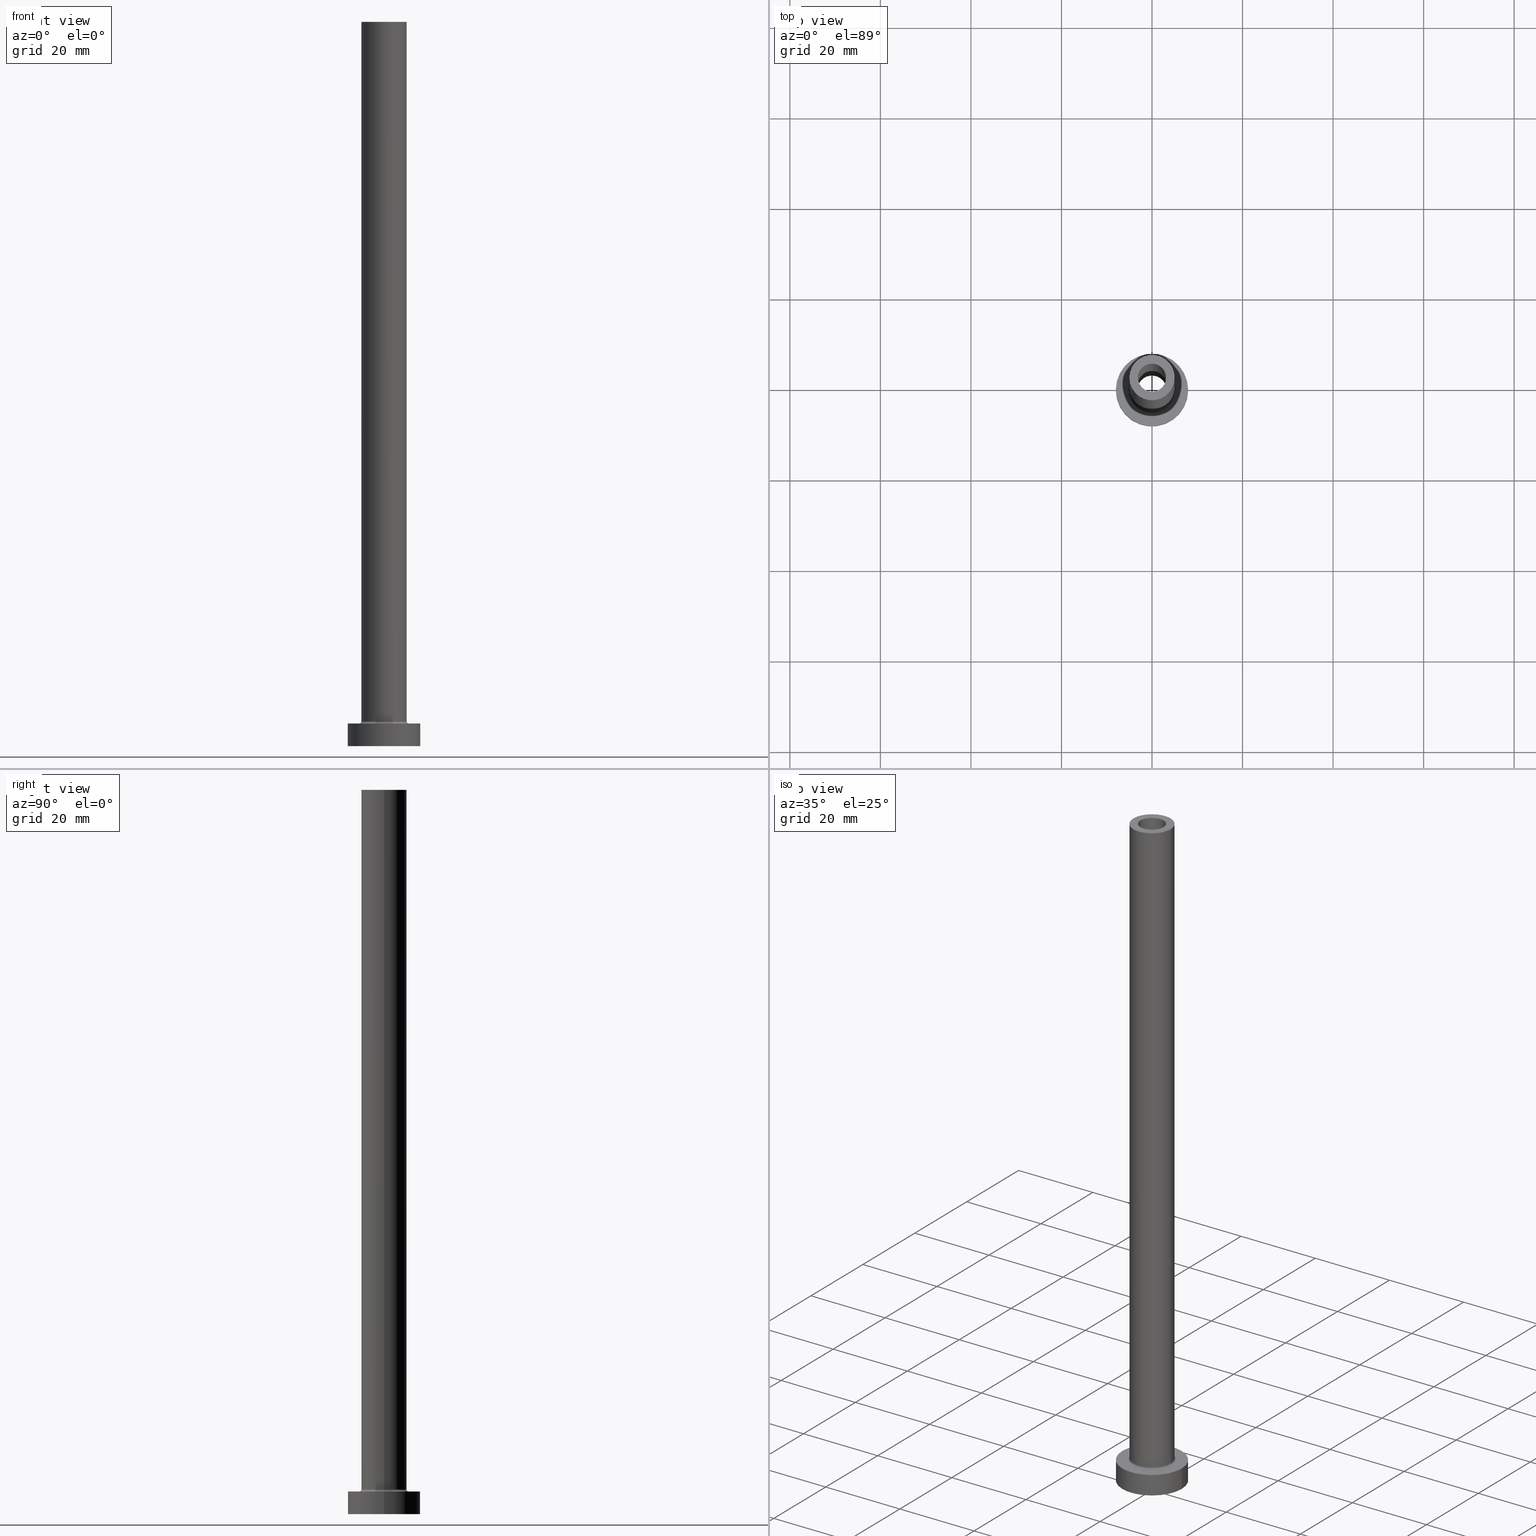
[diagram: canonical four-view strip — front | top / right | iso, engineering-drawing reading convention]
A machine part, canonical four-view strip (front | top / right | iso — engineering-drawing reading convention). The complete STEP part file that produces these views, byte-faithful:
ISO-10303-21;
HEADER;
FILE_DESCRIPTION (( 'STEP AP203' ),
    '1' );
FILE_NAME ('5072.STEP',
    '2023-02-13T09:12:24',
    ( '' ),
    ( '' ),
    'SwSTEP 2.0',
    'SolidWorks 2019',
    '' );
FILE_SCHEMA (( 'CONFIG_CONTROL_DESIGN' ));
ENDSEC;

DATA;
#1 = DIRECTION ( 'NONE',  ( 1.000000000000000000, 0.000000000000000000, 0.000000000000000000 ) ) ;
#2 = ADVANCED_BREP_SHAPE_REPRESENTATION ( '5072', ( #233, #438 ), #177 ) ;
#3 = ORIENTED_EDGE ( 'NONE', *, *, #66, .F. ) ;
#4 = ORIENTED_EDGE ( 'NONE', *, *, #107, .T. ) ;
#5 = ORIENTED_EDGE ( 'NONE', *, *, #46, .T. ) ;
#6 = CIRCLE ( 'NONE', #257, 8.000000000000000000 ) ;
#7 = ORIENTED_EDGE ( 'NONE', *, *, #185, .T. ) ;
#8 = CIRCLE ( 'NONE', #242, 3.250000000000000444 ) ;
#9 = CARTESIAN_POINT ( 'NONE',  ( 0.000000000000000000, 0.000000000000000000, 115.0000000000000000 ) ) ;
#10 = DIRECTION ( 'NONE',  ( 1.000000000000000000, 0.000000000000000000, -0.000000000000000000 ) ) ;
#11 = EDGE_CURVE ( 'NONE', #94, #293, #193, .T. ) ;
#12 = AXIS2_PLACEMENT_3D ( 'NONE', #155, #197, #127 ) ;
#13 = ORIENTED_EDGE ( 'NONE', *, *, #353, .T. ) ;
#14 = FACE_OUTER_BOUND ( 'NONE', #98, .T. ) ;
#15 = VERTEX_POINT ( 'NONE', #380 ) ;
#16 = EDGE_CURVE ( 'NONE', #422, #311, #173, .T. ) ;
#17 = CYLINDRICAL_SURFACE ( 'NONE', #427, 3.250000000000000444 ) ;
#18 = AXIS2_PLACEMENT_3D ( 'NONE', #272, #381, #68 ) ;
#19 = PERSON_AND_ORGANIZATION ( #74, #92 ) ;
#20 = CARTESIAN_POINT ( 'NONE',  ( -8.000000000000000000, 0.000000000000000000, 5.000000000000000000 ) ) ;
#21 = ORIENTED_EDGE ( 'NONE', *, *, #374, .T. ) ;
#22 = DATE_TIME_ROLE ( 'creation_date' ) ;
#23 = DIRECTION ( 'NONE',  ( 1.000000000000000000, 0.000000000000000000, -0.000000000000000000 ) ) ;
#24 = APPROVAL_DATE_TIME ( #159, #437 ) ;
#25 = DIRECTION ( 'NONE',  ( 0.000000000000000000, 0.000000000000000000, -1.000000000000000000 ) ) ;
#26 = AXIS2_PLACEMENT_3D ( 'NONE', #225, #255, #453 ) ;
#27 = APPROVAL_STATUS ( 'not_yet_approved' ) ;
#28 = LOCAL_TIME ( 10, 12, 24.00000000000000000, #58 ) ;
#29 = EDGE_LOOP ( 'NONE', ( #278, #289, #170, #117 ) ) ;
#30 = APPROVAL_STATUS ( 'not_yet_approved' ) ;
#31 = VECTOR ( 'NONE', #241, 1000.000000000000000 ) ;
#32 = DIRECTION ( 'NONE',  ( 1.000000000000000000, 0.000000000000000000, 0.000000000000000000 ) ) ;
#33 = EDGE_CURVE ( 'NONE', #175, #186, #421, .T. ) ;
#34 = CYLINDRICAL_SURFACE ( 'NONE', #41, 5.000000000000000000 ) ;
#35 = DIRECTION ( 'NONE',  ( 0.000000000000000000, 0.000000000000000000, 1.000000000000000000 ) ) ;
#36 = AXIS2_PLACEMENT_3D ( 'NONE', #122, #84, #23 ) ;
#37 = DIRECTION ( 'NONE',  ( 1.000000000000000000, 0.000000000000000000, 0.000000000000000000 ) ) ;
#38 = FACE_OUTER_BOUND ( 'NONE', #308, .T. ) ;
#39 = DIRECTION ( 'NONE',  ( -0.000000000000000000, -0.000000000000000000, -1.000000000000000000 ) ) ;
#40 =( NAMED_UNIT ( * ) SI_UNIT ( $, .STERADIAN. ) SOLID_ANGLE_UNIT ( ) );
#41 = AXIS2_PLACEMENT_3D ( 'NONE', #246, #313, #174 ) ;
#42 = CARTESIAN_POINT ( 'NONE',  ( -5.000000000000000000, 0.000000000000000000, 160.0000000000000000 ) ) ;
#43 = DIRECTION ( 'NONE',  ( 1.000000000000000000, 0.000000000000000000, -0.000000000000000000 ) ) ;
#44 = ORIENTED_EDGE ( 'NONE', *, *, #285, .T. ) ;
#45 = DIRECTION ( 'NONE',  ( 0.000000000000000000, 0.000000000000000000, 1.000000000000000000 ) ) ;
#46 = EDGE_CURVE ( 'NONE', #317, #283, #452, .T. ) ;
#47 = ORIENTED_EDGE ( 'NONE', *, *, #234, .T. ) ;
#48 = CARTESIAN_POINT ( 'NONE',  ( 3.100000000000000089, 3.796405077356793932E-16, 160.0000000000000000 ) ) ;
#49 = AXIS2_PLACEMENT_3D ( 'NONE', #239, #207, #32 ) ;
#50 = FACE_OUTER_BOUND ( 'NONE', #96, .T. ) ;
#51 = ORIENTED_EDGE ( 'NONE', *, *, #324, .F. ) ;
#52 = DIRECTION ( 'NONE',  ( 0.000000000000000000, 0.000000000000000000, -1.000000000000000000 ) ) ;
#53 = CIRCLE ( 'NONE', #434, 5.000000000000000000 ) ;
#54 = PERSON_AND_ORGANIZATION ( #74, #92 ) ;
#55 = CIRCLE ( 'NONE', #298, 3.100000000000000089 ) ;
#56 = DIRECTION ( 'NONE',  ( -0.000000000000000000, -0.000000000000000000, -1.000000000000000000 ) ) ;
#57 = DIRECTION ( 'NONE',  ( 0.000000000000000000, 0.000000000000000000, 1.000000000000000000 ) ) ;
#58 = COORDINATED_UNIVERSAL_TIME_OFFSET ( 1, 0, .AHEAD. ) ;
#59 = CARTESIAN_POINT ( 'NONE',  ( 0.000000000000000000, 0.000000000000000000, 0.000000000000000000 ) ) ;
#60 = ORIENTED_EDGE ( 'NONE', *, *, #276, .F. ) ;
#61 = ADVANCED_FACE ( 'NONE', ( #215, #14 ), #430, .T. ) ;
#62 = AXIS2_PLACEMENT_3D ( 'NONE', #248, #384, #144 ) ;
#63 = ORIENTED_EDGE ( 'NONE', *, *, #395, .T. ) ;
#64 = CARTESIAN_POINT ( 'NONE',  ( 0.000000000000000000, 0.000000000000000000, 5.000000000000000000 ) ) ;
#65 = CARTESIAN_POINT ( 'NONE',  ( 0.000000000000000000, 0.000000000000000000, 160.0000000000000000 ) ) ;
#66 = EDGE_CURVE ( 'NONE', #186, #216, #8, .T. ) ;
#67 = ADVANCED_FACE ( 'NONE', ( #153 ), #432, .F. ) ;
#68 = DIRECTION ( 'NONE',  ( 1.000000000000000000, 0.000000000000000000, 0.000000000000000000 ) ) ;
#69 = UNCERTAINTY_MEASURE_WITH_UNIT (LENGTH_MEASURE( 1.000000000000000082E-05 ), #106, 'distance_accuracy_value', 'NONE');
#70 = AXIS2_PLACEMENT_3D ( 'NONE', #341, #258, #264 ) ;
#71 = EDGE_CURVE ( 'NONE', #283, #317, #301, .T. ) ;
#72 = ADVANCED_FACE ( 'NONE', ( #389, #253 ), #147, .T. ) ;
#73 = CARTESIAN_POINT ( 'NONE',  ( 0.000000000000000000, 0.000000000000000000, 160.0000000000000000 ) ) ;
#74 = PERSON ( 'NEUR�EN�', 'NEUR�EN�', 'NEUR�EN�', ('NEUR�EN�'), ('NEUR�EN�'), ('NEUR�EN�') ) ;
#75 = CARTESIAN_POINT ( 'NONE',  ( 0.000000000000000000, 0.000000000000000000, 115.0000000000000000 ) ) ;
#76 = ORIENTED_EDGE ( 'NONE', *, *, #330, .T. ) ;
#77 = CYLINDRICAL_SURFACE ( 'NONE', #265, 8.000000000000000000 ) ;
#78 = CARTESIAN_POINT ( 'NONE',  ( 0.000000000000000000, 0.000000000000000000, 5.500000000000005329 ) ) ;
#79 = CARTESIAN_POINT ( 'NONE',  ( 0.000000000000000000, 0.000000000000000000, 160.0000000000000000 ) ) ;
#80 = ORIENTED_EDGE ( 'NONE', *, *, #405, .T. ) ;
#81 = AXIS2_PLACEMENT_3D ( 'NONE', #333, #192, #404 ) ;
#82 = FACE_OUTER_BOUND ( 'NONE', #148, .T. ) ;
#83 = CC_DESIGN_SECURITY_CLASSIFICATION ( #344, ( #190 ) ) ;
#84 = DIRECTION ( 'NONE',  ( 0.000000000000000000, 0.000000000000000000, 1.000000000000000000 ) ) ;
#85 = APPROVAL ( #30, 'NEUR�EN�' ) ;
#86 = FACE_BOUND ( 'NONE', #166, .T. ) ;
#87 = DIRECTION ( 'NONE',  ( 1.000000000000000000, 0.000000000000000000, 0.000000000000000000 ) ) ;
#88 = CARTESIAN_POINT ( 'NONE',  ( 0.000000000000000000, 0.000000000000000000, 5.500000000000005329 ) ) ;
#89 = ORIENTED_EDGE ( 'NONE', *, *, #66, .T. ) ;
#90 = VECTOR ( 'NONE', #281, 1000.000000000000000 ) ;
#91 = PERSON_AND_ORGANIZATION ( #74, #92 ) ;
#92 = ORGANIZATION ( 'NEUR�EN�', 'NEUR�EN�', '' ) ;
#93 = CARTESIAN_POINT ( 'NONE',  ( 0.000000000000000000, 0.000000000000000000, 160.0000000000000000 ) ) ;
#94 = VERTEX_POINT ( 'NONE', #320 ) ;
#95 = CARTESIAN_POINT ( 'NONE',  ( -3.100000000000000089, 0.000000000000000000, 160.0000000000000000 ) ) ;
#96 = EDGE_LOOP ( 'NONE', ( #329, #322, #63, #228 ) ) ;
#97 = CARTESIAN_POINT ( 'NONE',  ( -3.100000000000000089, 0.000000000000000000, 160.0000000000000000 ) ) ;
#98 = EDGE_LOOP ( 'NONE', ( #445, #44 ) ) ;
#99 = CC_DESIGN_PERSON_AND_ORGANIZATION_ASSIGNMENT ( #451, #406, ( #190 ) ) ;
#100 = APPROVAL_ROLE ( '' ) ;
#101 = CARTESIAN_POINT ( 'NONE',  ( 3.250000000000000444, 3.980102097228898231E-16, 124.1923881554251210 ) ) ;
#102 = EDGE_LOOP ( 'NONE', ( #162, #21 ) ) ;
#103 = ADVANCED_FACE ( 'NONE', ( #393 ), #213, .F. ) ;
#104 = DIRECTION ( 'NONE',  ( 0.000000000000000000, 0.000000000000000000, 1.000000000000000000 ) ) ;
#105 = ORIENTED_EDGE ( 'NONE', *, *, #245, .F. ) ;
#106 =( LENGTH_UNIT ( ) NAMED_UNIT ( * ) SI_UNIT ( .MILLI., .METRE. ) );
#107 = EDGE_CURVE ( 'NONE', #431, #15, #163, .T. ) ;
#108 = CARTESIAN_POINT ( 'NONE',  ( -3.100000000000000089, 0.000000000000000000, 115.0000000000000000 ) ) ;
#109 = CC_DESIGN_APPROVAL ( #437, ( #190 ) ) ;
#110 = CARTESIAN_POINT ( 'NONE',  ( 0.000000000000000000, 0.000000000000000000, 0.000000000000000000 ) ) ;
#111 = LINE ( 'NONE', #392, #90 ) ;
#112 = ORIENTED_EDGE ( 'NONE', *, *, #267, .T. ) ;
#113 = CC_DESIGN_PERSON_AND_ORGANIZATION_ASSIGNMENT ( #54, #171, ( #172 ) ) ;
#114 = CIRCLE ( 'NONE', #176, 8.000000000000000000 ) ;
#115 = CALENDAR_DATE ( 2023, 13, 2 ) ;
#116 = DIRECTION ( 'NONE',  ( -1.000000000000000000, 0.000000000000000000, 0.000000000000000000 ) ) ;
#117 = ORIENTED_EDGE ( 'NONE', *, *, #443, .F. ) ;
#118 = ADVANCED_FACE ( 'NONE', ( #428 ), #423, .F. ) ;
#119 = DIRECTION ( 'NONE',  ( 1.000000000000000000, 0.000000000000000000, 0.000000000000000000 ) ) ;
#120 = ORIENTED_EDGE ( 'NONE', *, *, #361, .F. ) ;
#121 = DATE_AND_TIME ( #391, #145 ) ;
#122 = CARTESIAN_POINT ( 'NONE',  ( 0.000000000000000000, 0.000000000000000000, 0.000000000000000000 ) ) ;
#123 = VECTOR ( 'NONE', #136, 1000.000000000000000 ) ;
#124 = LINE ( 'NONE', #292, #217 ) ;
#125 = APPROVAL_PERSON_ORGANIZATION ( #126, #351, #439 ) ;
#126 = PERSON_AND_ORGANIZATION ( #74, #92 ) ;
#127 = DIRECTION ( 'NONE',  ( -1.000000000000000000, 0.000000000000000000, 0.000000000000000000 ) ) ;
#128 = CC_DESIGN_DATE_AND_TIME_ASSIGNMENT ( #196, #22, ( #172 ) ) ;
#129 = CARTESIAN_POINT ( 'NONE',  ( 5.000000000000000000, 6.123233995736766282E-16, 160.0000000000000000 ) ) ;
#130 = VERTEX_POINT ( 'NONE', #108 ) ;
#131 = FACE_OUTER_BOUND ( 'NONE', #364, .T. ) ;
#132 = AXIS2_PLACEMENT_3D ( 'NONE', #93, #260, #339 ) ;
#133 = ADVANCED_FACE ( 'NONE', ( #158 ), #224, .F. ) ;
#134 = ORIENTED_EDGE ( 'NONE', *, *, #354, .T. ) ;
#135 = APPROVAL_DATE_TIME ( #307, #85 ) ;
#136 = DIRECTION ( 'NONE',  ( -0.000000000000000000, -0.000000000000000000, -1.000000000000000000 ) ) ;
#137 = DIRECTION ( 'NONE',  ( -0.000000000000000000, -0.000000000000000000, -1.000000000000000000 ) ) ;
#138 = DIRECTION ( 'NONE',  ( 1.000000000000000000, 0.000000000000000000, 0.000000000000000000 ) ) ;
#139 = CARTESIAN_POINT ( 'NONE',  ( 3.100000000000000089, 3.796405077356793932E-16, 115.0000000000000000 ) ) ;
#140 = ORIENTED_EDGE ( 'NONE', *, *, #33, .T. ) ;
#141 = EDGE_CURVE ( 'NONE', #175, #184, #231, .T. ) ;
#142 = ORIENTED_EDGE ( 'NONE', *, *, #188, .F. ) ;
#143 = DIRECTION ( 'NONE',  ( 1.224646799147353207E-16, 1.000000000000000000, -0.000000000000000000 ) ) ;
#144 = DIRECTION ( 'NONE',  ( 1.000000000000000000, 0.000000000000000000, 0.000000000000000000 ) ) ;
#145 = LOCAL_TIME ( 10, 12, 24.00000000000000000, #312 ) ;
#146 = AXIS2_PLACEMENT_3D ( 'NONE', #254, #223, #363 ) ;
#147 = PLANE ( 'NONE',  #415 ) ;
#148 = EDGE_LOOP ( 'NONE', ( #76, #140, #89, #382 ) ) ;
#149 = DIRECTION ( 'NONE',  ( 0.000000000000000000, 0.000000000000000000, 1.000000000000000000 ) ) ;
#150 = ADVANCED_FACE ( 'NONE', ( #161, #368 ), #304, .F. ) ;
#151 = ORIENTED_EDGE ( 'NONE', *, *, #353, .F. ) ;
#152 = APPROVAL_PERSON_ORGANIZATION ( #376, #85, #100 ) ;
#153 = FACE_OUTER_BOUND ( 'NONE', #29, .T. ) ;
#154 = ORIENTED_EDGE ( 'NONE', *, *, #324, .T. ) ;
#155 = CARTESIAN_POINT ( 'NONE',  ( 0.000000000000000000, 0.000000000000000000, 160.0000000000000000 ) ) ;
#156 = ADVANCED_FACE ( 'NONE', ( #82 ), #17, .F. ) ;
#157 = VECTOR ( 'NONE', #274, 1000.000000000000000 ) ;
#158 = FACE_OUTER_BOUND ( 'NONE', #189, .T. ) ;
#159 = DATE_AND_TIME ( #458, #448 ) ;
#160 = AXIS2_PLACEMENT_3D ( 'NONE', #75, #429, #357 ) ;
#161 = FACE_BOUND ( 'NONE', #275, .T. ) ;
#162 = ORIENTED_EDGE ( 'NONE', *, *, #188, .T. ) ;
#163 = CIRCLE ( 'NONE', #146, 0.5000000000000004441 ) ;
#164 = COORDINATED_UNIVERSAL_TIME_OFFSET ( 1, 0, .AHEAD. ) ;
#165 = CARTESIAN_POINT ( 'NONE',  ( 8.000000000000000000, 9.797174393178825657E-16, 0.000000000000000000 ) ) ;
#166 = EDGE_LOOP ( 'NONE', ( #247, #244 ) ) ;
#167 = ADVANCED_FACE ( 'NONE', ( #410 ), #300, .F. ) ;
#168 = APPLICATION_PROTOCOL_DEFINITION ( 'international standard', 'config_control_design', 1994, #436 ) ;
#169 = CARTESIAN_POINT ( 'NONE',  ( -5.500000000000000000, 6.735557395310442023E-16, 5.000000000000002665 ) ) ;
#170 = ORIENTED_EDGE ( 'NONE', *, *, #309, .T. ) ;
#171 = PERSON_AND_ORGANIZATION_ROLE ( 'creator' ) ;
#172 = PRODUCT_DEFINITION ( 'NEZN�M�', '', #190, #347 ) ;
#173 = LINE ( 'NONE', #349, #385 ) ;
#174 = DIRECTION ( 'NONE',  ( -1.000000000000000000, 0.000000000000000000, 0.000000000000000000 ) ) ;
#175 = VERTEX_POINT ( 'NONE', #398 ) ;
#176 = AXIS2_PLACEMENT_3D ( 'NONE', #64, #316, #346 ) ;
#177 =( GEOMETRIC_REPRESENTATION_CONTEXT ( 3 ) GLOBAL_UNCERTAINTY_ASSIGNED_CONTEXT ( ( #69 ) ) GLOBAL_UNIT_ASSIGNED_CONTEXT ( ( #106, #249, #40 ) ) REPRESENTATION_CONTEXT ( 'NONE', 'WORKASPACE' ) );
#178 = ORIENTED_EDGE ( 'NONE', *, *, #405, .F. ) ;
#179 = DIRECTION ( 'NONE',  ( -0.000000000000000000, -0.000000000000000000, -1.000000000000000000 ) ) ;
#180 = DIRECTION ( 'NONE',  ( 0.000000000000000000, 0.000000000000000000, -1.000000000000000000 ) ) ;
#181 = VECTOR ( 'NONE', #294, 1000.000000000000000 ) ;
#182 = ADVANCED_FACE ( 'NONE', ( #50 ), #198, .T. ) ;
#183 = DIRECTION ( 'NONE',  ( 0.000000000000000000, 0.000000000000000000, 1.000000000000000000 ) ) ;
#184 = VERTEX_POINT ( 'NONE', #366 ) ;
#185 = EDGE_CURVE ( 'NONE', #283, #319, #297, .T. ) ;
#186 = VERTEX_POINT ( 'NONE', #331 ) ;
#187 = PRODUCT_RELATED_PRODUCT_CATEGORY ( 'detail', '', ( #352 ) ) ;
#188 = EDGE_CURVE ( 'NONE', #15, #302, #343, .T. ) ;
#189 = EDGE_LOOP ( 'NONE', ( #5, #7, #60, #417 ) ) ;
#190 = PRODUCT_DEFINITION_FORMATION_WITH_SPECIFIED_SOURCE ( 'LIBOVOLN�', '', #352, .NOT_KNOWN. ) ;
#191 = DATE_AND_TIME ( #115, #367 ) ;
#192 = DIRECTION ( 'NONE',  ( -0.000000000000000000, -0.000000000000000000, -1.000000000000000000 ) ) ;
#193 = CIRCLE ( 'NONE', #49, 8.000000000000000000 ) ;
#194 = EDGE_CURVE ( 'NONE', #422, #251, #388, .T. ) ;
#195 = APPROVAL_STATUS ( 'not_yet_approved' ) ;
#196 = DATE_AND_TIME ( #338, #28 ) ;
#197 = DIRECTION ( 'NONE',  ( 0.000000000000000000, 0.000000000000000000, -1.000000000000000000 ) ) ;
#198 = CYLINDRICAL_SURFACE ( 'NONE', #81, 5.000000000000000000 ) ;
#199 = AXIS2_PLACEMENT_3D ( 'NONE', #73, #183, #219 ) ;
#200 = DIRECTION ( 'NONE',  ( 1.000000000000000000, 0.000000000000000000, 0.000000000000000000 ) ) ;
#201 = ORIENTED_EDGE ( 'NONE', *, *, #11, .F. ) ;
#202 = DIRECTION ( 'NONE',  ( 0.000000000000000000, 0.000000000000000000, 1.000000000000000000 ) ) ;
#203 = DIRECTION ( 'NONE',  ( -0.000000000000000000, -0.000000000000000000, -1.000000000000000000 ) ) ;
#204 = CIRCLE ( 'NONE', #383, 3.250000000000000444 ) ;
#205 = APPLICATION_PROTOCOL_DEFINITION ( 'international standard', 'config_control_design', 1994, #210 ) ;
#206 = DIRECTION ( 'NONE',  ( 1.000000000000000000, 0.000000000000000000, 0.000000000000000000 ) ) ;
#207 = DIRECTION ( 'NONE',  ( 0.000000000000000000, 0.000000000000000000, 1.000000000000000000 ) ) ;
#208 = CARTESIAN_POINT ( 'NONE',  ( -5.000000000000000000, 0.000000000000000000, 5.500000000000005329 ) ) ;
#209 = EDGE_LOOP ( 'NONE', ( #178, #375, #4, #450 ) ) ;
#210 = APPLICATION_CONTEXT ( 'configuration controlled 3d designs of mechanical parts and assemblies' ) ;
#211 = CARTESIAN_POINT ( 'NONE',  ( 0.000000000000000000, 0.000000000000000000, 0.000000000000000000 ) ) ;
#212 = ORIENTED_EDGE ( 'NONE', *, *, #194, .F. ) ;
#213 = TOROIDAL_SURFACE ( 'NONE', #284, 5.500000000000000000, 0.5000000000000000000 ) ;
#214 = DIRECTION ( 'NONE',  ( 1.000000000000000000, 0.000000000000000000, 0.000000000000000000 ) ) ;
#215 = FACE_BOUND ( 'NONE', #102, .T. ) ;
#216 = VERTEX_POINT ( 'NONE', #456 ) ;
#217 = VECTOR ( 'NONE', #52, 1000.000000000000000 ) ;
#218 = DIRECTION ( 'NONE',  ( 0.000000000000000000, 0.000000000000000000, 1.000000000000000000 ) ) ;
#219 = DIRECTION ( 'NONE',  ( 1.000000000000000000, 0.000000000000000000, 0.000000000000000000 ) ) ;
#220 = ORIENTED_EDGE ( 'NONE', *, *, #33, .F. ) ;
#221 = CARTESIAN_POINT ( 'NONE',  ( 0.000000000000000000, 0.000000000000000000, 5.000000000000000000 ) ) ;
#222 = ORIENTED_EDGE ( 'NONE', *, *, #332, .T. ) ;
#223 = DIRECTION ( 'NONE',  ( 0.000000000000000000, -1.000000000000000000, 0.000000000000000000 ) ) ;
#224 = CYLINDRICAL_SURFACE ( 'NONE', #12, 3.100000000000000089 ) ;
#225 = CARTESIAN_POINT ( 'NONE',  ( 0.000000000000000000, 0.000000000000000000, 124.1923881554251210 ) ) ;
#226 = DIRECTION ( 'NONE',  ( -1.000000000000000000, 1.224646799147351482E-16, 0.000000000000000000 ) ) ;
#227 = DIRECTION ( 'NONE',  ( -0.000000000000000000, -0.000000000000000000, -1.000000000000000000 ) ) ;
#228 = ORIENTED_EDGE ( 'NONE', *, *, #16, .F. ) ;
#229 = CARTESIAN_POINT ( 'NONE',  ( 0.000000000000000000, 0.000000000000000000, 0.000000000000000000 ) ) ;
#230 = ADVANCED_FACE ( 'NONE', ( #131 ), #232, .T. ) ;
#231 = CIRCLE ( 'NONE', #70, 3.250000000000000444 ) ;
#232 = CYLINDRICAL_SURFACE ( 'NONE', #355, 8.000000000000000000 ) ;
#233 = MANIFOLD_SOLID_BREP ( 'Odebrat vysunut�m4', #291 ) ;
#234 = EDGE_CURVE ( 'NONE', #184, #216, #124, .T. ) ;
#235 = CARTESIAN_POINT ( 'NONE',  ( -8.000000000000000000, 0.000000000000000000, 0.000000000000000000 ) ) ;
#236 = CC_DESIGN_DATE_AND_TIME_ASSIGNMENT ( #121, #360, ( #344 ) ) ;
#237 = DIRECTION ( 'NONE',  ( 1.000000000000000000, 0.000000000000000000, 0.000000000000000000 ) ) ;
#238 = CARTESIAN_POINT ( 'NONE',  ( 0.000000000000000000, 0.000000000000000000, 115.0000000000000000 ) ) ;
#239 = CARTESIAN_POINT ( 'NONE',  ( 0.000000000000000000, 0.000000000000000000, 5.000000000000000000 ) ) ;
#240 = FACE_OUTER_BOUND ( 'NONE', #387, .T. ) ;
#241 = DIRECTION ( 'NONE',  ( 0.000000000000000000, 0.000000000000000000, -1.000000000000000000 ) ) ;
#242 = AXIS2_PLACEMENT_3D ( 'NONE', #110, #39, #288 ) ;
#243 = LINE ( 'NONE', #95, #157 ) ;
#244 = ORIENTED_EDGE ( 'NONE', *, *, #443, .T. ) ;
#245 = EDGE_CURVE ( 'NONE', #94, #268, #336, .T. ) ;
#246 = CARTESIAN_POINT ( 'NONE',  ( 0.000000000000000000, 0.000000000000000000, 160.0000000000000000 ) ) ;
#247 = ORIENTED_EDGE ( 'NONE', *, *, #276, .T. ) ;
#248 = CARTESIAN_POINT ( 'NONE',  ( 0.000000000000000000, 0.000000000000000000, 5.500000000000005329 ) ) ;
#249 =( NAMED_UNIT ( * ) PLANE_ANGLE_UNIT ( ) SI_UNIT ( $, .RADIAN. ) );
#250 = ORIENTED_EDGE ( 'NONE', *, *, #285, .F. ) ;
#251 = VERTEX_POINT ( 'NONE', #129 ) ;
#252 = VECTOR ( 'NONE', #407, 1000.000000000000000 ) ;
#253 = FACE_OUTER_BOUND ( 'NONE', #442, .T. ) ;
#254 = CARTESIAN_POINT ( 'NONE',  ( 5.500000000000000000, 0.000000000000000000, 5.500000000000005329 ) ) ;
#255 = DIRECTION ( 'NONE',  ( 0.000000000000000000, 0.000000000000000000, -1.000000000000000000 ) ) ;
#256 = ORIENTED_EDGE ( 'NONE', *, *, #245, .T. ) ;
#257 = AXIS2_PLACEMENT_3D ( 'NONE', #373, #379, #348 ) ;
#258 = DIRECTION ( 'NONE',  ( 0.000000000000000000, 0.000000000000000000, 1.000000000000000000 ) ) ;
#259 = PLANE ( 'NONE',  #160 ) ;
#260 = DIRECTION ( 'NONE',  ( 0.000000000000000000, 0.000000000000000000, 1.000000000000000000 ) ) ;
#261 = AXIS2_PLACEMENT_3D ( 'NONE', #440, #180, #116 ) ;
#262 = CARTESIAN_POINT ( 'NONE',  ( 0.000000000000000000, 0.000000000000000000, 5.000000000000000000 ) ) ;
#263 = SECURITY_CLASSIFICATION_LEVEL ( 'unclassified' ) ;
#264 = DIRECTION ( 'NONE',  ( 1.000000000000000000, 0.000000000000000000, 0.000000000000000000 ) ) ;
#265 = AXIS2_PLACEMENT_3D ( 'NONE', #221, #179, #318 ) ;
#266 = PERSON_AND_ORGANIZATION ( #74, #92 ) ;
#267 = EDGE_CURVE ( 'NONE', #311, #431, #53, .T. ) ;
#268 = VERTEX_POINT ( 'NONE', #235 ) ;
#269 = CARTESIAN_POINT ( 'NONE',  ( 8.000000000000000000, 9.797174393178825657E-16, 5.000000000000000000 ) ) ;
#270 = CIRCLE ( 'NONE', #280, 5.000000000000000000 ) ;
#271 = VERTEX_POINT ( 'NONE', #165 ) ;
#272 = CARTESIAN_POINT ( 'NONE',  ( 0.000000000000000000, 0.000000000000000000, 5.000000000000000000 ) ) ;
#273 = ORIENTED_EDGE ( 'NONE', *, *, #354, .F. ) ;
#274 = DIRECTION ( 'NONE',  ( 0.000000000000000000, 0.000000000000000000, -1.000000000000000000 ) ) ;
#275 = EDGE_LOOP ( 'NONE', ( #273, #3 ) ) ;
#276 = EDGE_CURVE ( 'NONE', #130, #319, #314, .T. ) ;
#277 = PRODUCT_DEFINITION_SHAPE ( 'NONE', 'NONE',  #172 ) ;
#278 = ORIENTED_EDGE ( 'NONE', *, *, #185, .F. ) ;
#279 = AXIS2_PLACEMENT_3D ( 'NONE', #59, #203, #1 ) ;
#280 = AXIS2_PLACEMENT_3D ( 'NONE', #424, #218, #214 ) ;
#281 = DIRECTION ( 'NONE',  ( -0.000000000000000000, -0.000000000000000000, -1.000000000000000000 ) ) ;
#282 = CC_DESIGN_APPROVAL ( #351, ( #344 ) ) ;
#283 = VERTEX_POINT ( 'NONE', #459 ) ;
#284 = AXIS2_PLACEMENT_3D ( 'NONE', #78, #45, #119 ) ;
#285 = EDGE_CURVE ( 'NONE', #293, #94, #114, .T. ) ;
#286 = FACE_OUTER_BOUND ( 'NONE', #454, .T. ) ;
#287 = AXIS2_PLACEMENT_3D ( 'NONE', #211, #104, #37 ) ;
#288 = DIRECTION ( 'NONE',  ( 1.000000000000000000, 0.000000000000000000, 0.000000000000000000 ) ) ;
#289 = ORIENTED_EDGE ( 'NONE', *, *, #71, .T. ) ;
#290 = COORDINATED_UNIVERSAL_TIME_OFFSET ( 1, 0, .AHEAD. ) ;
#291 = CLOSED_SHELL ( 'NONE', ( #133, #156, #118, #182, #449, #230, #61, #150, #370, #72, #103, #167, #418, #67 ) ) ;
#292 = CARTESIAN_POINT ( 'NONE',  ( -3.250000000000000444, 0.000000000000000000, 124.1923881554251210 ) ) ;
#293 = VERTEX_POINT ( 'NONE', #414 ) ;
#294 = DIRECTION ( 'NONE',  ( 0.000000000000000000, 0.000000000000000000, -1.000000000000000000 ) ) ;
#295 = ORIENTED_EDGE ( 'NONE', *, *, #361, .T. ) ;
#296 = CARTESIAN_POINT ( 'NONE',  ( -5.500000000000000000, 6.735557395310442023E-16, 5.500000000000005329 ) ) ;
#297 = LINE ( 'NONE', #48, #181 ) ;
#298 = AXIS2_PLACEMENT_3D ( 'NONE', #9, #149, #403 ) ;
#299 = APPROVAL_ROLE ( '' ) ;
#300 = CYLINDRICAL_SURFACE ( 'NONE', #26, 3.250000000000000444 ) ;
#301 = CIRCLE ( 'NONE', #199, 3.100000000000000089 ) ;
#302 = VERTEX_POINT ( 'NONE', #169 ) ;
#303 = PERSON_AND_ORGANIZATION ( #74, #92 ) ;
#304 = PLANE ( 'NONE',  #36 ) ;
#305 = AXIS2_PLACEMENT_3D ( 'NONE', #306, #377, #206 ) ;
#306 = CARTESIAN_POINT ( 'NONE',  ( 0.000000000000000000, 0.000000000000000000, 160.0000000000000000 ) ) ;
#307 = DATE_AND_TIME ( #335, #411 ) ;
#308 = EDGE_LOOP ( 'NONE', ( #412, #359 ) ) ;
#309 = EDGE_CURVE ( 'NONE', #317, #130, #243, .T. ) ;
#310 = DIRECTION ( 'NONE',  ( 0.000000000000000000, 0.000000000000000000, 1.000000000000000000 ) ) ;
#311 = VERTEX_POINT ( 'NONE', #208 ) ;
#312 = COORDINATED_UNIVERSAL_TIME_OFFSET ( 1, 0, .AHEAD. ) ;
#313 = DIRECTION ( 'NONE',  ( -0.000000000000000000, -0.000000000000000000, -1.000000000000000000 ) ) ;
#314 = CIRCLE ( 'NONE', #401, 3.100000000000000089 ) ;
#315 = EDGE_LOOP ( 'NONE', ( #425, #80, #142, #400 ) ) ;
#316 = DIRECTION ( 'NONE',  ( 0.000000000000000000, 0.000000000000000000, 1.000000000000000000 ) ) ;
#317 = VERTEX_POINT ( 'NONE', #97 ) ;
#318 = DIRECTION ( 'NONE',  ( -1.000000000000000000, 0.000000000000000000, 0.000000000000000000 ) ) ;
#319 = VERTEX_POINT ( 'NONE', #139 ) ;
#320 = CARTESIAN_POINT ( 'NONE',  ( -8.000000000000000000, 0.000000000000000000, 5.000000000000000000 ) ) ;
#321 = CIRCLE ( 'NONE', #287, 8.000000000000000000 ) ;
#322 = ORIENTED_EDGE ( 'NONE', *, *, #409, .T. ) ;
#323 = ORIENTED_EDGE ( 'NONE', *, *, #194, .T. ) ;
#324 = EDGE_CURVE ( 'NONE', #271, #268, #321, .T. ) ;
#325 = ORIENTED_EDGE ( 'NONE', *, *, #46, .F. ) ;
#326 = CIRCLE ( 'NONE', #305, 5.000000000000000000 ) ;
#327 = AXIS2_PLACEMENT_3D ( 'NONE', #296, #143, #226 ) ;
#328 = CC_DESIGN_APPROVAL ( #85, ( #172 ) ) ;
#329 = ORIENTED_EDGE ( 'NONE', *, *, #332, .F. ) ;
#330 = EDGE_CURVE ( 'NONE', #184, #175, #204, .T. ) ;
#331 = CARTESIAN_POINT ( 'NONE',  ( 3.250000000000000444, 3.980102097228898231E-16, 0.000000000000000000 ) ) ;
#332 = EDGE_CURVE ( 'NONE', #251, #422, #326, .T. ) ;
#333 = CARTESIAN_POINT ( 'NONE',  ( 0.000000000000000000, 0.000000000000000000, 160.0000000000000000 ) ) ;
#334 = AXIS2_PLACEMENT_3D ( 'NONE', #447, #56, #87 ) ;
#335 = CALENDAR_DATE ( 2023, 13, 2 ) ;
#336 = LINE ( 'NONE', #20, #252 ) ;
#337 = EDGE_LOOP ( 'NONE', ( #220, #461, #47, #134 ) ) ;
#338 = CALENDAR_DATE ( 2023, 13, 2 ) ;
#339 = DIRECTION ( 'NONE',  ( 1.000000000000000000, 0.000000000000000000, 0.000000000000000000 ) ) ;
#340 = PERSON_AND_ORGANIZATION_ROLE ( 'design_owner' ) ;
#341 = CARTESIAN_POINT ( 'NONE',  ( 0.000000000000000000, 0.000000000000000000, 115.0000000000000000 ) ) ;
#342 = DIRECTION ( 'NONE',  ( 1.000000000000000000, 0.000000000000000000, 0.000000000000000000 ) ) ;
#343 = CIRCLE ( 'NONE', #334, 5.500000000000000000 ) ;
#344 = SECURITY_CLASSIFICATION ( '', '', #263 ) ;
#345 = CC_DESIGN_PERSON_AND_ORGANIZATION_ASSIGNMENT ( #303, #455, ( #190 ) ) ;
#346 = DIRECTION ( 'NONE',  ( 1.000000000000000000, 0.000000000000000000, 0.000000000000000000 ) ) ;
#347 = DESIGN_CONTEXT ( 'detailed design', #210, 'design' ) ;
#348 = DIRECTION ( 'NONE',  ( 1.000000000000000000, 0.000000000000000000, 0.000000000000000000 ) ) ;
#349 = CARTESIAN_POINT ( 'NONE',  ( -5.000000000000000000, 0.000000000000000000, 160.0000000000000000 ) ) ;
#350 = ORIENTED_EDGE ( 'NONE', *, *, #409, .F. ) ;
#351 = APPROVAL ( #195, 'NEUR�EN�' ) ;
#352 = PRODUCT ( '5072', '5072', '', ( #419 ) ) ;
#353 = EDGE_CURVE ( 'NONE', #268, #271, #6, .T. ) ;
#354 = EDGE_CURVE ( 'NONE', #216, #186, #365, .T. ) ;
#355 = AXIS2_PLACEMENT_3D ( 'NONE', #262, #227, #369 ) ;
#356 = SHAPE_DEFINITION_REPRESENTATION ( #277, #2 ) ;
#357 = DIRECTION ( 'NONE',  ( 1.000000000000000000, 0.000000000000000000, -0.000000000000000000 ) ) ;
#358 = DIRECTION ( 'NONE',  ( 0.000000000000000000, 0.000000000000000000, 1.000000000000000000 ) ) ;
#359 = ORIENTED_EDGE ( 'NONE', *, *, #141, .F. ) ;
#360 = DATE_TIME_ROLE ( 'classification_date' ) ;
#361 = EDGE_CURVE ( 'NONE', #293, #271, #420, .T. ) ;
#362 = ORIENTED_EDGE ( 'NONE', *, *, #71, .F. ) ;
#363 = DIRECTION ( 'NONE',  ( 0.000000000000000000, 0.000000000000000000, -1.000000000000000000 ) ) ;
#364 = EDGE_LOOP ( 'NONE', ( #120, #201, #256, #13 ) ) ;
#365 = CIRCLE ( 'NONE', #279, 3.250000000000000444 ) ;
#366 = CARTESIAN_POINT ( 'NONE',  ( -3.250000000000000444, 0.000000000000000000, 115.0000000000000000 ) ) ;
#367 = LOCAL_TIME ( 10, 12, 24.00000000000000000, #290 ) ;
#368 = FACE_OUTER_BOUND ( 'NONE', #396, .T. ) ;
#369 = DIRECTION ( 'NONE',  ( -1.000000000000000000, 0.000000000000000000, 0.000000000000000000 ) ) ;
#370 = ADVANCED_FACE ( 'NONE', ( #240 ), #34, .T. ) ;
#371 = DIRECTION ( 'NONE',  ( 1.000000000000000000, 0.000000000000000000, 0.000000000000000000 ) ) ;
#372 = CARTESIAN_POINT ( 'NONE',  ( 0.000000000000000000, 0.000000000000000000, 115.0000000000000000 ) ) ;
#373 = CARTESIAN_POINT ( 'NONE',  ( 0.000000000000000000, 0.000000000000000000, 0.000000000000000000 ) ) ;
#374 = EDGE_CURVE ( 'NONE', #302, #15, #446, .T. ) ;
#375 = ORIENTED_EDGE ( 'NONE', *, *, #395, .F. ) ;
#376 = PERSON_AND_ORGANIZATION ( #74, #92 ) ;
#377 = DIRECTION ( 'NONE',  ( 0.000000000000000000, 0.000000000000000000, 1.000000000000000000 ) ) ;
#378 = EDGE_LOOP ( 'NONE', ( #325, #362 ) ) ;
#379 = DIRECTION ( 'NONE',  ( 0.000000000000000000, 0.000000000000000000, 1.000000000000000000 ) ) ;
#380 = CARTESIAN_POINT ( 'NONE',  ( 5.500000000000000000, 0.000000000000000000, 5.000000000000002665 ) ) ;
#381 = DIRECTION ( 'NONE',  ( -0.000000000000000000, -0.000000000000000000, -1.000000000000000000 ) ) ;
#382 = ORIENTED_EDGE ( 'NONE', *, *, #234, .F. ) ;
#383 = AXIS2_PLACEMENT_3D ( 'NONE', #238, #310, #237 ) ;
#384 = DIRECTION ( 'NONE',  ( 0.000000000000000000, 0.000000000000000000, 1.000000000000000000 ) ) ;
#385 = VECTOR ( 'NONE', #137, 1000.000000000000000 ) ;
#386 = CARTESIAN_POINT ( 'NONE',  ( 0.000000000000000000, 0.000000000000000000, 5.000000000000000000 ) ) ;
#387 = EDGE_LOOP ( 'NONE', ( #350, #212, #433, #112 ) ) ;
#388 = CIRCLE ( 'NONE', #132, 5.000000000000000000 ) ;
#389 = FACE_BOUND ( 'NONE', #378, .T. ) ;
#390 = CIRCLE ( 'NONE', #327, 0.5000000000000004441 ) ;
#391 = CALENDAR_DATE ( 2023, 13, 2 ) ;
#392 = CARTESIAN_POINT ( 'NONE',  ( 5.000000000000000000, 6.123233995736766282E-16, 160.0000000000000000 ) ) ;
#393 = FACE_OUTER_BOUND ( 'NONE', #209, .T. ) ;
#394 = AXIS2_PLACEMENT_3D ( 'NONE', #65, #35, #138 ) ;
#395 = EDGE_CURVE ( 'NONE', #431, #311, #270, .T. ) ;
#396 = EDGE_LOOP ( 'NONE', ( #151, #51 ) ) ;
#397 = APPROVAL_DATE_TIME ( #191, #351 ) ;
#398 = CARTESIAN_POINT ( 'NONE',  ( 3.250000000000000444, 3.980102097228898231E-16, 115.0000000000000000 ) ) ;
#399 = CC_DESIGN_PERSON_AND_ORGANIZATION_ASSIGNMENT ( #266, #340, ( #352 ) ) ;
#400 = ORIENTED_EDGE ( 'NONE', *, *, #107, .F. ) ;
#401 = AXIS2_PLACEMENT_3D ( 'NONE', #372, #57, #200 ) ;
#402 = DIRECTION ( 'NONE',  ( -1.000000000000000000, 0.000000000000000000, 0.000000000000000000 ) ) ;
#403 = DIRECTION ( 'NONE',  ( 1.000000000000000000, 0.000000000000000000, 0.000000000000000000 ) ) ;
#404 = DIRECTION ( 'NONE',  ( -1.000000000000000000, 0.000000000000000000, 0.000000000000000000 ) ) ;
#405 = EDGE_CURVE ( 'NONE', #311, #302, #390, .T. ) ;
#406 = PERSON_AND_ORGANIZATION_ROLE ( 'creator' ) ;
#407 = DIRECTION ( 'NONE',  ( -0.000000000000000000, -0.000000000000000000, -1.000000000000000000 ) ) ;
#408 = PERSON_AND_ORGANIZATION_ROLE ( 'classification_officer' ) ;
#409 = EDGE_CURVE ( 'NONE', #251, #431, #111, .T. ) ;
#410 = FACE_OUTER_BOUND ( 'NONE', #337, .T. ) ;
#411 = LOCAL_TIME ( 10, 12, 24.00000000000000000, #413 ) ;
#412 = ORIENTED_EDGE ( 'NONE', *, *, #330, .F. ) ;
#413 = COORDINATED_UNIVERSAL_TIME_OFFSET ( 1, 0, .AHEAD. ) ;
#414 = CARTESIAN_POINT ( 'NONE',  ( 8.000000000000000000, 9.797174393178825657E-16, 5.000000000000000000 ) ) ;
#415 = AXIS2_PLACEMENT_3D ( 'NONE', #79, #358, #43 ) ;
#416 = CC_DESIGN_PERSON_AND_ORGANIZATION_ASSIGNMENT ( #91, #408, ( #344 ) ) ;
#417 = ORIENTED_EDGE ( 'NONE', *, *, #309, .F. ) ;
#418 = ADVANCED_FACE ( 'NONE', ( #86, #38 ), #259, .F. ) ;
#419 = MECHANICAL_CONTEXT ( 'NONE', #436, 'mechanical' ) ;
#420 = LINE ( 'NONE', #269, #123 ) ;
#421 = LINE ( 'NONE', #101, #31 ) ;
#422 = VERTEX_POINT ( 'NONE', #42 ) ;
#423 = TOROIDAL_SURFACE ( 'NONE', #62, 5.500000000000000000, 0.5000000000000000000 ) ;
#424 = CARTESIAN_POINT ( 'NONE',  ( 0.000000000000000000, 0.000000000000000000, 5.500000000000005329 ) ) ;
#425 = ORIENTED_EDGE ( 'NONE', *, *, #267, .F. ) ;
#426 = CARTESIAN_POINT ( 'NONE',  ( 5.000000000000000000, 6.123233995736766282E-16, 5.500000000000005329 ) ) ;
#427 = AXIS2_PLACEMENT_3D ( 'NONE', #444, #25, #402 ) ;
#428 = FACE_OUTER_BOUND ( 'NONE', #315, .T. ) ;
#429 = DIRECTION ( 'NONE',  ( 0.000000000000000000, 0.000000000000000000, 1.000000000000000000 ) ) ;
#430 = PLANE ( 'NONE',  #460 ) ;
#431 = VERTEX_POINT ( 'NONE', #426 ) ;
#432 = CYLINDRICAL_SURFACE ( 'NONE', #261, 3.100000000000000089 ) ;
#433 = ORIENTED_EDGE ( 'NONE', *, *, #16, .T. ) ;
#434 = AXIS2_PLACEMENT_3D ( 'NONE', #88, #441, #371 ) ;
#435 = DIRECTION ( 'NONE',  ( 0.000000000000000000, 0.000000000000000000, 1.000000000000000000 ) ) ;
#436 = APPLICATION_CONTEXT ( 'configuration controlled 3d designs of mechanical parts and assemblies' ) ;
#437 = APPROVAL ( #27, 'NEUR�EN�' ) ;
#438 = AXIS2_PLACEMENT_3D ( 'NONE', #229, #202, #342 ) ;
#439 = APPROVAL_ROLE ( '' ) ;
#440 = CARTESIAN_POINT ( 'NONE',  ( 0.000000000000000000, 0.000000000000000000, 160.0000000000000000 ) ) ;
#441 = DIRECTION ( 'NONE',  ( 0.000000000000000000, 0.000000000000000000, 1.000000000000000000 ) ) ;
#442 = EDGE_LOOP ( 'NONE', ( #323, #222 ) ) ;
#443 = EDGE_CURVE ( 'NONE', #319, #130, #55, .T. ) ;
#444 = CARTESIAN_POINT ( 'NONE',  ( 0.000000000000000000, 0.000000000000000000, 124.1923881554251210 ) ) ;
#445 = ORIENTED_EDGE ( 'NONE', *, *, #11, .T. ) ;
#446 = CIRCLE ( 'NONE', #18, 5.500000000000000000 ) ;
#447 = CARTESIAN_POINT ( 'NONE',  ( 0.000000000000000000, 0.000000000000000000, 5.000000000000000000 ) ) ;
#448 = LOCAL_TIME ( 10, 12, 24.00000000000000000, #164 ) ;
#449 = ADVANCED_FACE ( 'NONE', ( #286 ), #77, .T. ) ;
#450 = ORIENTED_EDGE ( 'NONE', *, *, #374, .F. ) ;
#451 = PERSON_AND_ORGANIZATION ( #74, #92 ) ;
#452 = CIRCLE ( 'NONE', #394, 3.100000000000000089 ) ;
#453 = DIRECTION ( 'NONE',  ( -1.000000000000000000, 0.000000000000000000, 0.000000000000000000 ) ) ;
#454 = EDGE_LOOP ( 'NONE', ( #250, #295, #154, #105 ) ) ;
#455 = PERSON_AND_ORGANIZATION_ROLE ( 'design_supplier' ) ;
#456 = CARTESIAN_POINT ( 'NONE',  ( -3.250000000000000444, 0.000000000000000000, 0.000000000000000000 ) ) ;
#457 = APPROVAL_PERSON_ORGANIZATION ( #19, #437, #299 ) ;
#458 = CALENDAR_DATE ( 2023, 13, 2 ) ;
#459 = CARTESIAN_POINT ( 'NONE',  ( 3.100000000000000089, 3.796405077356793932E-16, 160.0000000000000000 ) ) ;
#460 = AXIS2_PLACEMENT_3D ( 'NONE', #386, #435, #10 ) ;
#461 = ORIENTED_EDGE ( 'NONE', *, *, #141, .T. ) ;
ENDSEC;
END-ISO-10303-21;
